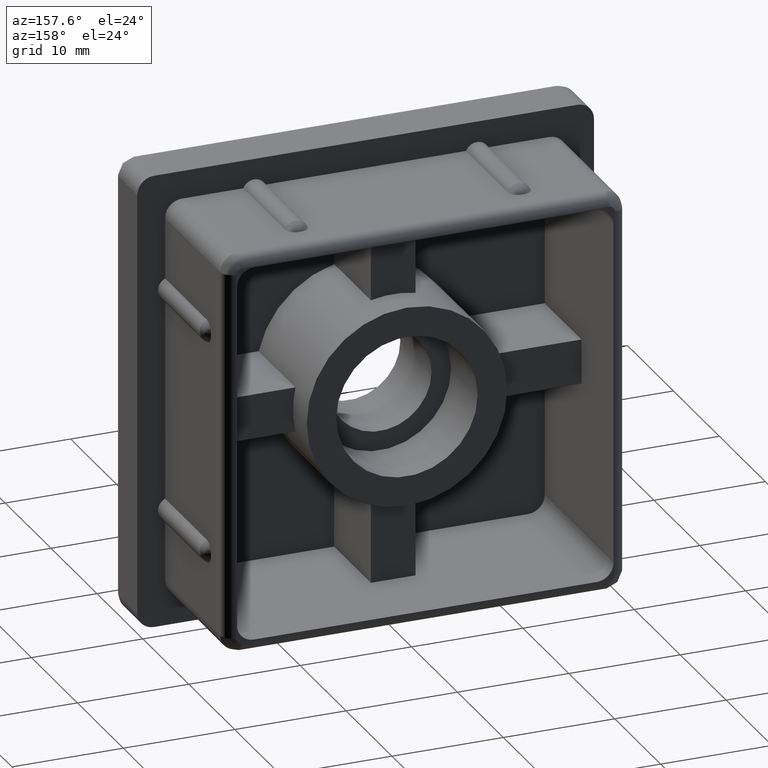
[diagram: clean part render]
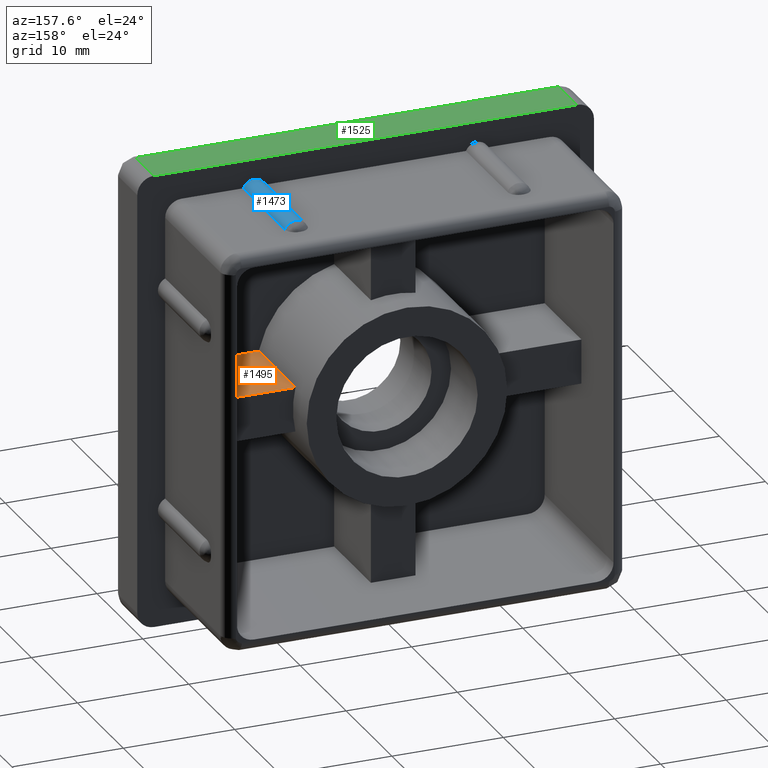
[diagram: same view with three faces highlighted in distinct colors, each labeled with its STEP entity id]
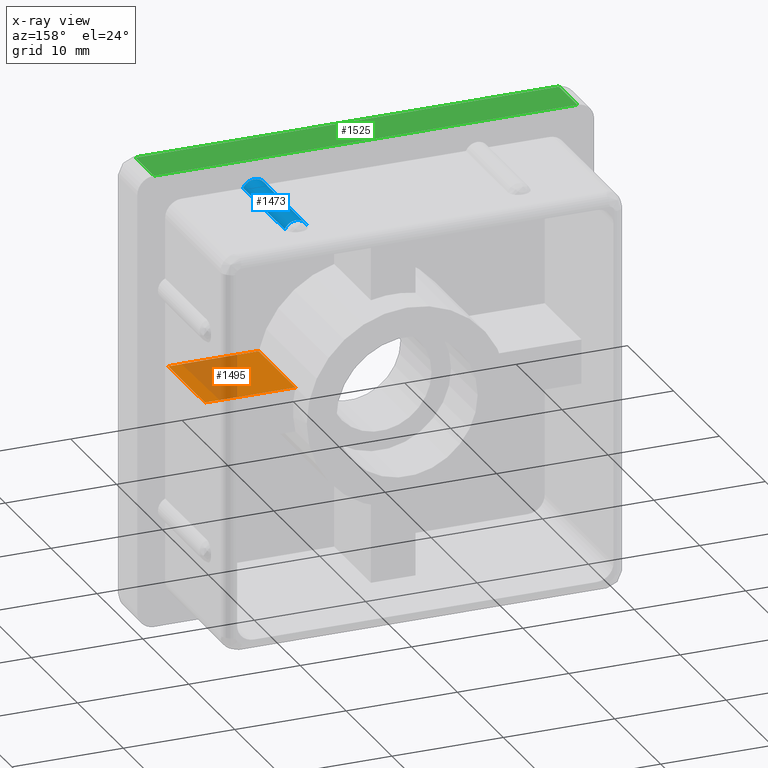
[diagram: x-ray of the same camera — body ghosted, the three highlighted faces saturated]
A machine part, auxiliary view with three faces highlighted in distinct colors.
The next image is the same camera in x-ray (body ghosted, the three faces saturated) — at least one of them is partly hidden behind the body in this view.
Their STEP definitions:

[orange] entity #1495 — the highlighted planar face has unit normal (-0, 0, 1).
#51=PLANE('',#1601);
#206=FACE_OUTER_BOUND('',#291,.T.);
#291=EDGE_LOOP('',(#1187,#1188,#1189,#1190));
#424=LINE('',#3134,#552);
#427=LINE('',#3147,#555);
#431=LINE('',#3156,#559);
#433=LINE('',#3160,#561);
#552=VECTOR('',#1852,8.12503561260788);
#555=VECTOR('',#1867,8.);
#559=VECTOR('',#1875,8.12503561260788);
#561=VECTOR('',#1881,8.);
#726=VERTEX_POINT('',#3131);
#727=VERTEX_POINT('',#3133);
#731=VERTEX_POINT('',#3146);
#734=VERTEX_POINT('',#3153);
#904=EDGE_CURVE('',#726,#727,#424,.T.);
#911=EDGE_CURVE('',#727,#731,#427,.T.);
#916=EDGE_CURVE('',#731,#734,#431,.T.);
#918=EDGE_CURVE('',#734,#726,#433,.T.);
#1187=ORIENTED_EDGE('',*,*,#918,.F.);
#1188=ORIENTED_EDGE('',*,*,#916,.F.);
#1189=ORIENTED_EDGE('',*,*,#911,.F.);
#1190=ORIENTED_EDGE('',*,*,#904,.F.);
#1495=ADVANCED_FACE('',(#206),#51,.T.);
#1601=AXIS2_PLACEMENT_3D('',#3159,#1879,#1880);
#1852=DIRECTION('',(-1.,0.,-3.08395284618099E-17));
#1867=DIRECTION('',(0.,1.,0.));
#1875=DIRECTION('',(1.,0.,3.08395284618099E-17));
#1879=DIRECTION('center_axis',(-3.08395284618099E-17,0.,1.));
#1880=DIRECTION('ref_axis',(1.,0.,2.22044604925031E-17));
#1881=DIRECTION('',(0.,-1.,0.));
#3131=CARTESIAN_POINT('',(16.9,-2.,2.));
#3133=CARTESIAN_POINT('',(8.77496438739212,-2.,2.));
#3134=CARTESIAN_POINT('',(4.32480320150537,-2.,2.));
#3146=CARTESIAN_POINT('',(8.77496438739212,6.,2.));
#3147=CARTESIAN_POINT('',(8.77496438739212,-2.,2.));
#3153=CARTESIAN_POINT('',(16.9,6.,2.));
#3156=CARTESIAN_POINT('',(8.64960640301075,6.,2.));
#3159=CARTESIAN_POINT('Origin',(8.64960640301075,-2.,2.));
#3160=CARTESIAN_POINT('',(16.9,5.5,2.));

[blue] entity #1473 — the highlighted cylindrical surface (edge-blend (fillet) strip) has radius 1.0942 mm, axis along (0, 1, 0).
#79=CIRCLE('',#1560,1.09423076923077);
#143=CYLINDRICAL_SURFACE('',#1566,1.09423076923077);
#184=FACE_OUTER_BOUND('',#268,.T.);
#268=EDGE_LOOP('',(#1078,#1079,#1080,#1081));
#378=LINE('',#3029,#506);
#379=LINE('',#3030,#507);
#506=VECTOR('',#1756,9.08611599297012);
#507=VECTOR('',#1757,9.08611599412273);
#619=B_SPLINE_CURVE_WITH_KNOTS('',3,(#2611,#2612,#2613,#2614,#2615,#2616,
#2617,#2618,#2619,#2620),.UNSPECIFIED.,.F.,.F.,(4,1,1,1,1,1,1,4),(-0.0111055431273467,
-0.0110072530105807,-0.00660325928532313,-0.00219926556006559,0.00220472816519195,
0.00660872189044949,0.011012715615707,0.0111143410771075),.UNSPECIFIED.);
#647=VERTEX_POINT('',#2597);
#648=VERTEX_POINT('',#2610);
#682=VERTEX_POINT('',#3002);
#683=VERTEX_POINT('',#3004);
#799=EDGE_CURVE('',#647,#648,#619,.T.);
#837=EDGE_CURVE('',#682,#683,#79,.T.);
#850=EDGE_CURVE('',#683,#647,#378,.T.);
#851=EDGE_CURVE('',#648,#682,#379,.T.);
#1078=ORIENTED_EDGE('',*,*,#799,.F.);
#1079=ORIENTED_EDGE('',*,*,#850,.F.);
#1080=ORIENTED_EDGE('',*,*,#837,.F.);
#1081=ORIENTED_EDGE('',*,*,#851,.F.);
#1473=ADVANCED_FACE('',(#184),#143,.T.);
#1560=AXIS2_PLACEMENT_3D('',#3005,#1735,#1736);
#1566=AXIS2_PLACEMENT_3D('',#3028,#1754,#1755);
#1735=DIRECTION('center_axis',(0.,-1.,0.));
#1736=DIRECTION('ref_axis',(-0.913884007029877,0.,0.40597539543058));
#1754=DIRECTION('center_axis',(0.,1.,0.));
#1755=DIRECTION('ref_axis',(-0.913884007029877,0.,0.40597539543058));
#1756=DIRECTION('',(0.,1.,0.));
#1757=DIRECTION('',(0.,-1.,0.));
#2597=CARTESIAN_POINT('',(9.00000000000001,9.08611599297012,18.));
#2610=CARTESIAN_POINT('',(11.0000000066922,9.08611599412273,17.9999999849354));
#2611=CARTESIAN_POINT('Ctrl Pts',(8.99997633128169,9.08612510985941,17.9997265737077));
#2612=CARTESIAN_POINT('Ctrl Pts',(9.00141648389875,9.086001246099,18.002964554975));
#2613=CARTESIAN_POINT('Ctrl Pts',(9.06814328880704,9.08034402223503,18.1510428505647));
#2614=CARTESIAN_POINT('Ctrl Pts',(9.26894138375028,9.07066170765964,18.4216579273032));
#2615=CARTESIAN_POINT('Ctrl Pts',(9.73582682610858,9.06291186838828,18.6603522848546));
#2616=CARTESIAN_POINT('Ctrl Pts',(10.2647115621378,9.06292728097727,18.6597254869301));
#2617=CARTESIAN_POINT('Ctrl Pts',(10.7290097004888,9.07060573617104,18.4233554875281));
#2618=CARTESIAN_POINT('Ctrl Pts',(10.9316255707487,9.0803184447987,18.1516908222627));
#2619=CARTESIAN_POINT('Ctrl Pts',(10.9985002607252,9.08598220114439,18.0034353203104));
#2620=CARTESIAN_POINT('Ctrl Pts',(10.9999905682134,9.08611032689751,18.0000859782479));
#3002=CARTESIAN_POINT('',(11.,0.,18.));
#3004=CARTESIAN_POINT('',(9.,0.,18.));
#3005=CARTESIAN_POINT('Origin',(10.,0.,17.5557692307692));
#3028=CARTESIAN_POINT('Origin',(10.,0.,17.5557692307692));
#3029=CARTESIAN_POINT('',(9.,0.,18.));
#3030=CARTESIAN_POINT('',(11.,0.,18.));

[green] entity #1525 — the highlighted planar face has unit normal (-0, 0, 1).
#58=PLANE('',#1663);
#236=FACE_OUTER_BOUND('',#325,.T.);
#325=EDGE_LOOP('',(#1344,#1345,#1346,#1347));
#364=LINE('',#2982,#492);
#436=LINE('',#3210,#564);
#464=LINE('',#3368,#592);
#465=LINE('',#3370,#593);
#492=VECTOR('',#1718,38.);
#564=VECTOR('',#1916,38.);
#592=VECTOR('',#2034,4.);
#593=VECTOR('',#2037,4.);
#671=VERTEX_POINT('',#2979);
#672=VERTEX_POINT('',#2981);
#745=VERTEX_POINT('',#3202);
#747=VERTEX_POINT('',#3208);
#825=EDGE_CURVE('',#671,#672,#364,.T.);
#933=EDGE_CURVE('',#747,#745,#436,.T.);
#989=EDGE_CURVE('',#672,#747,#464,.T.);
#990=EDGE_CURVE('',#745,#671,#465,.T.);
#1344=ORIENTED_EDGE('',*,*,#933,.F.);
#1345=ORIENTED_EDGE('',*,*,#989,.F.);
#1346=ORIENTED_EDGE('',*,*,#825,.F.);
#1347=ORIENTED_EDGE('',*,*,#990,.F.);
#1525=ADVANCED_FACE('',(#236),#58,.T.);
#1663=AXIS2_PLACEMENT_3D('',#3369,#2035,#2036);
#1718=DIRECTION('',(1.,0.,1.08314441426844E-16));
#1916=DIRECTION('',(-1.,0.,-1.08314441426844E-16));
#2034=DIRECTION('',(0.,-1.,0.));
#2035=DIRECTION('center_axis',(-1.08314441426845E-16,0.,1.));
#2036=DIRECTION('ref_axis',(-1.,0.,0.));
#2037=DIRECTION('',(0.,1.,0.));
#2979=CARTESIAN_POINT('',(-19.,0.,20.5));
#2981=CARTESIAN_POINT('',(19.,0.,20.5));
#2982=CARTESIAN_POINT('',(-20.5,0.,20.5));
#3202=CARTESIAN_POINT('',(-19.,-4.,20.5));
#3208=CARTESIAN_POINT('',(19.,-4.,20.5));
#3210=CARTESIAN_POINT('',(10.25,-4.,20.5));
#3368=CARTESIAN_POINT('',(19.,0.,20.5));
#3369=CARTESIAN_POINT('Origin',(20.5,0.,20.5));
#3370=CARTESIAN_POINT('',(-19.,0.,20.5));